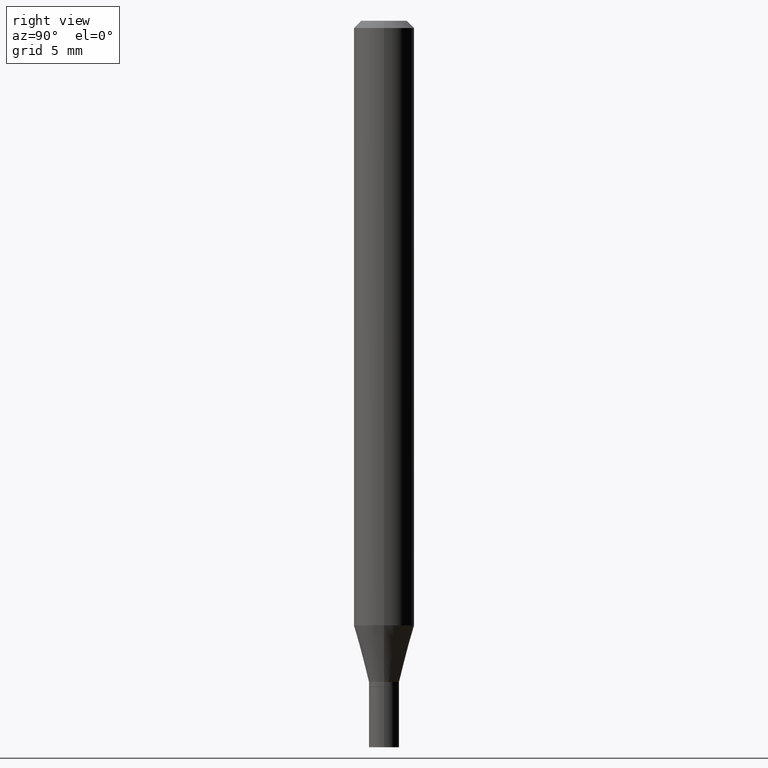
[diagram: clean part render]
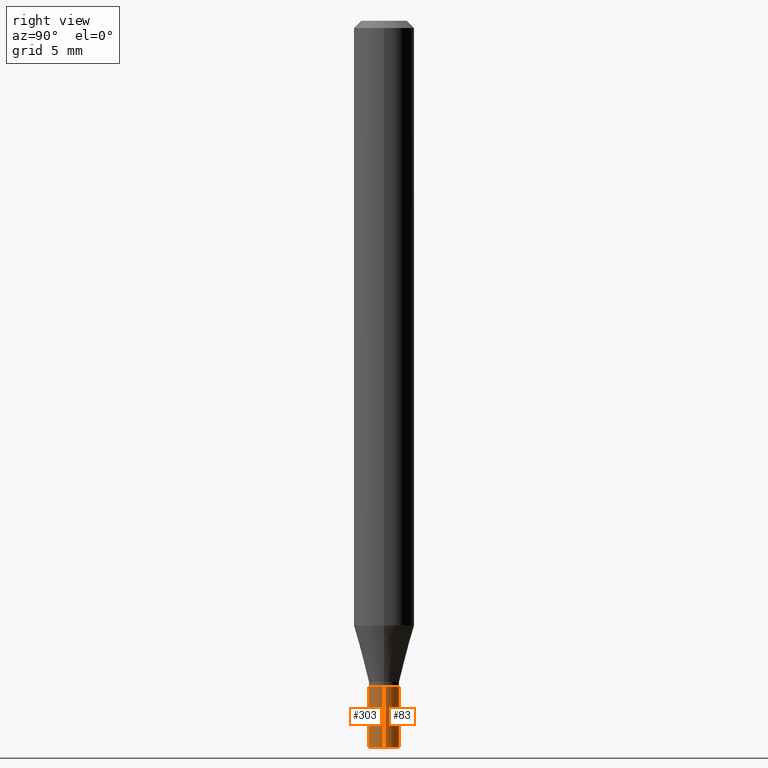
[diagram: same view with one multi-face feature highlighted, each face labeled with its STEP entity id]
A machine part, right view. The highlighted faces form ONE feature: a constant-radius fillet chain: 2 tangent blend faces with common blend radius 0.7938 mm. The faces share edges in the B-rep.
Their STEP definitions:
[1] entity #83 (Cylinder):
#3 = VECTOR ( 'NONE', #295, 39.37007874015748143 ) ;
#10 = AXIS2_PLACEMENT_3D ( 'NONE', #129, #231, #409 ) ;
#27 = CYLINDRICAL_SURFACE ( 'NONE', #212, 0.03125000000000000694 ) ;
#30 = DIRECTION ( 'NONE',  ( -2.445468806185136597E-29, 3.491481338843145583E-15, 1.000000000000000000 ) ) ;
#47 = EDGE_CURVE ( 'NONE', #70, #69, #280, .T. ) ;
#61 = CARTESIAN_POINT ( 'NONE',  ( 3.362519608504562260E-29, -4.800786840909324930E-15, -1.375000000000000000 ) ) ;
#69 = VERTEX_POINT ( 'NONE', #387 ) ;
#70 = VERTEX_POINT ( 'NONE', #214 ) ;
#83 = ADVANCED_FACE ( 'NONE', ( #345 ), #27, .T. ) ;
#90 = CARTESIAN_POINT ( 'NONE',  ( 0.03125000000000000694, -5.455439591942414011E-15, -1.500000000000000222 ) ) ;
#125 = CIRCLE ( 'NONE', #10, 0.03125000000000000694 ) ;
#129 = CARTESIAN_POINT ( 'NONE',  ( 3.668203209277704895E-29, -5.237222008264718177E-15, -1.500000000000000222 ) ) ;
#164 = VECTOR ( 'NONE', #324, 39.37007874015748143 ) ;
#178 = ORIENTED_EDGE ( 'NONE', *, *, #47, .F. ) ;
#185 = EDGE_CURVE ( 'NONE', #425, #70, #399, .T. ) ;
#190 = ORIENTED_EDGE ( 'NONE', *, *, #192, .T. ) ;
#192 = EDGE_CURVE ( 'NONE', #425, #221, #125, .T. ) ;
#194 = CARTESIAN_POINT ( 'NONE',  ( 0.03125000000000000694, -2.182175836776959087E-16, 1.523805242436230286E-30 ) ) ;
#212 = AXIS2_PLACEMENT_3D ( 'NONE', #393, #285, #250 ) ;
#214 = CARTESIAN_POINT ( 'NONE',  ( 0.03125000000000000694, -5.019004424587020764E-15, -1.375000000000000000 ) ) ;
#221 = VERTEX_POINT ( 'NONE', #404 ) ;
#230 = CARTESIAN_POINT ( 'NONE',  ( -0.03125000000000000694, 2.220446049250313574E-16, -1.537167215704658582E-30 ) ) ;
#231 = DIRECTION ( 'NONE',  ( -2.445468806185136597E-29, 3.491481338843145583E-15, 1.000000000000000000 ) ) ;
#246 = EDGE_LOOP ( 'NONE', ( #190, #379, #178, #361 ) ) ;
#250 = DIRECTION ( 'NONE',  ( 1.000000000000000000, -6.982962677686267499E-15, 4.876176775795935793E-29 ) ) ;
#280 = CIRCLE ( 'NONE', #327, 0.03125000000000000694 ) ;
#285 = DIRECTION ( 'NONE',  ( -2.445468806185136597E-29, 3.491481338843145583E-15, 1.000000000000000000 ) ) ;
#295 = DIRECTION ( 'NONE',  ( -2.445468806185136877E-29, 3.491481338843145188E-15, 1.000000000000000000 ) ) ;
#324 = DIRECTION ( 'NONE',  ( -2.445468806185136877E-29, 3.491481338843145188E-15, 1.000000000000000000 ) ) ;
#327 = AXIS2_PLACEMENT_3D ( 'NONE', #61, #30, #463 ) ;
#329 = LINE ( 'NONE', #230, #3 ) ;
#345 = FACE_OUTER_BOUND ( 'NONE', #246, .T. ) ;
#361 = ORIENTED_EDGE ( 'NONE', *, *, #185, .F. ) ;
#379 = ORIENTED_EDGE ( 'NONE', *, *, #446, .T. ) ;
#387 = CARTESIAN_POINT ( 'NONE',  ( -0.03125000000000000694, -4.796959819661991034E-15, -1.375000000000000000 ) ) ;
#393 = CARTESIAN_POINT ( 'NONE',  ( 0.000000000000000000, 0.000000000000000000, 0.000000000000000000 ) ) ;
#399 = LINE ( 'NONE', #194, #164 ) ;
#404 = CARTESIAN_POINT ( 'NONE',  ( -0.03125000000000000694, -4.796959819661991034E-15, -1.500000000000000222 ) ) ;
#409 = DIRECTION ( 'NONE',  ( 1.000000000000000000, -6.982962677686261189E-15, 0.000000000000000000 ) ) ;
#425 = VERTEX_POINT ( 'NONE', #90 ) ;
#446 = EDGE_CURVE ( 'NONE', #221, #69, #329, .T. ) ;
#463 = DIRECTION ( 'NONE',  ( 1.000000000000000000, -6.982962677686261189E-15, 0.000000000000000000 ) ) ;
[2] entity #303 (Cylinder):
#1 = DIRECTION ( 'NONE',  ( -2.445468806185136597E-29, 3.491481338843145583E-15, 1.000000000000000000 ) ) ;
#3 = VECTOR ( 'NONE', #295, 39.37007874015748143 ) ;
#5 = DIRECTION ( 'NONE',  ( 1.000000000000000000, -6.982962677686261189E-15, 0.000000000000000000 ) ) ;
#57 = AXIS2_PLACEMENT_3D ( 'NONE', #114, #293, #151 ) ;
#65 = CIRCLE ( 'NONE', #134, 0.03125000000000000694 ) ;
#69 = VERTEX_POINT ( 'NONE', #387 ) ;
#70 = VERTEX_POINT ( 'NONE', #214 ) ;
#90 = CARTESIAN_POINT ( 'NONE',  ( 0.03125000000000000694, -5.455439591942414011E-15, -1.500000000000000222 ) ) ;
#114 = CARTESIAN_POINT ( 'NONE',  ( 0.000000000000000000, 0.000000000000000000, 0.000000000000000000 ) ) ;
#134 = AXIS2_PLACEMENT_3D ( 'NONE', #319, #1, #225 ) ;
#145 = ORIENTED_EDGE ( 'NONE', *, *, #185, .T. ) ;
#147 = FACE_OUTER_BOUND ( 'NONE', #347, .T. ) ;
#151 = DIRECTION ( 'NONE',  ( 1.000000000000000000, -6.982962677686267499E-15, 4.876176775795935793E-29 ) ) ;
#164 = VECTOR ( 'NONE', #324, 39.37007874015748143 ) ;
#183 = CARTESIAN_POINT ( 'NONE',  ( 3.668203209277704895E-29, -5.237222008264718177E-15, -1.500000000000000222 ) ) ;
#185 = EDGE_CURVE ( 'NONE', #425, #70, #399, .T. ) ;
#187 = DIRECTION ( 'NONE',  ( -2.445468806185136597E-29, 3.491481338843145583E-15, 1.000000000000000000 ) ) ;
#191 = ORIENTED_EDGE ( 'NONE', *, *, #446, .F. ) ;
#194 = CARTESIAN_POINT ( 'NONE',  ( 0.03125000000000000694, -2.182175836776959087E-16, 1.523805242436230286E-30 ) ) ;
#214 = CARTESIAN_POINT ( 'NONE',  ( 0.03125000000000000694, -5.019004424587020764E-15, -1.375000000000000000 ) ) ;
#221 = VERTEX_POINT ( 'NONE', #404 ) ;
#225 = DIRECTION ( 'NONE',  ( 1.000000000000000000, -6.982962677686261189E-15, 0.000000000000000000 ) ) ;
#230 = CARTESIAN_POINT ( 'NONE',  ( -0.03125000000000000694, 2.220446049250313574E-16, -1.537167215704658582E-30 ) ) ;
#255 = ORIENTED_EDGE ( 'NONE', *, *, #355, .F. ) ;
#276 = AXIS2_PLACEMENT_3D ( 'NONE', #183, #187, #5 ) ;
#293 = DIRECTION ( 'NONE',  ( -2.445468806185136597E-29, 3.491481338843145583E-15, 1.000000000000000000 ) ) ;
#295 = DIRECTION ( 'NONE',  ( -2.445468806185136877E-29, 3.491481338843145188E-15, 1.000000000000000000 ) ) ;
#303 = ADVANCED_FACE ( 'NONE', ( #147 ), #426, .T. ) ;
#319 = CARTESIAN_POINT ( 'NONE',  ( 3.362519608504562260E-29, -4.800786840909324930E-15, -1.375000000000000000 ) ) ;
#324 = DIRECTION ( 'NONE',  ( -2.445468806185136877E-29, 3.491481338843145188E-15, 1.000000000000000000 ) ) ;
#329 = LINE ( 'NONE', #230, #3 ) ;
#337 = EDGE_CURVE ( 'NONE', #221, #425, #420, .T. ) ;
#347 = EDGE_LOOP ( 'NONE', ( #191, #424, #145, #255 ) ) ;
#355 = EDGE_CURVE ( 'NONE', #69, #70, #65, .T. ) ;
#387 = CARTESIAN_POINT ( 'NONE',  ( -0.03125000000000000694, -4.796959819661991034E-15, -1.375000000000000000 ) ) ;
#399 = LINE ( 'NONE', #194, #164 ) ;
#404 = CARTESIAN_POINT ( 'NONE',  ( -0.03125000000000000694, -4.796959819661991034E-15, -1.500000000000000222 ) ) ;
#420 = CIRCLE ( 'NONE', #276, 0.03125000000000000694 ) ;
#424 = ORIENTED_EDGE ( 'NONE', *, *, #337, .T. ) ;
#425 = VERTEX_POINT ( 'NONE', #90 ) ;
#426 = CYLINDRICAL_SURFACE ( 'NONE', #57, 0.03125000000000000694 ) ;
#446 = EDGE_CURVE ( 'NONE', #221, #69, #329, .T. ) ;